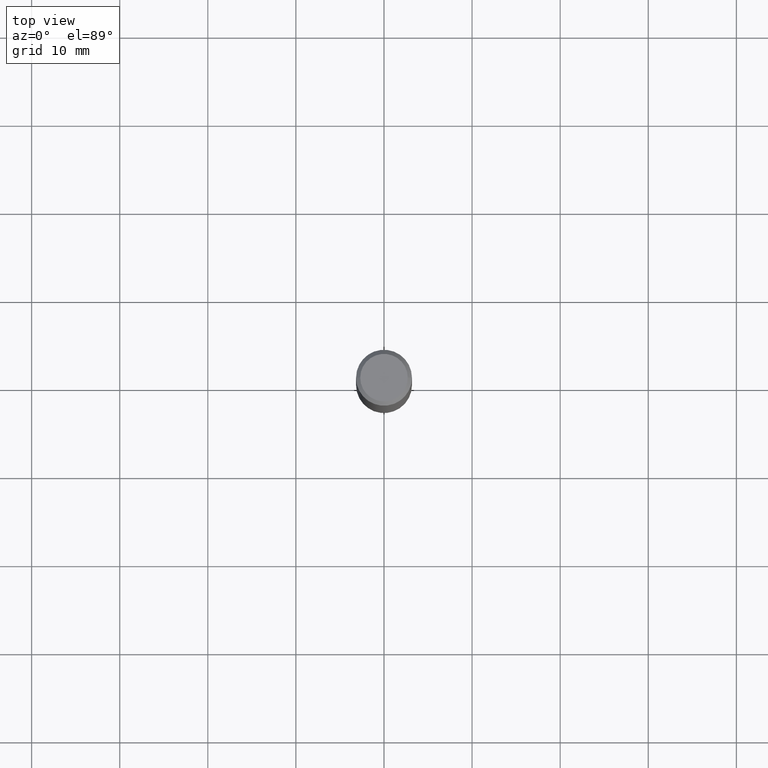
[diagram: clean part render]
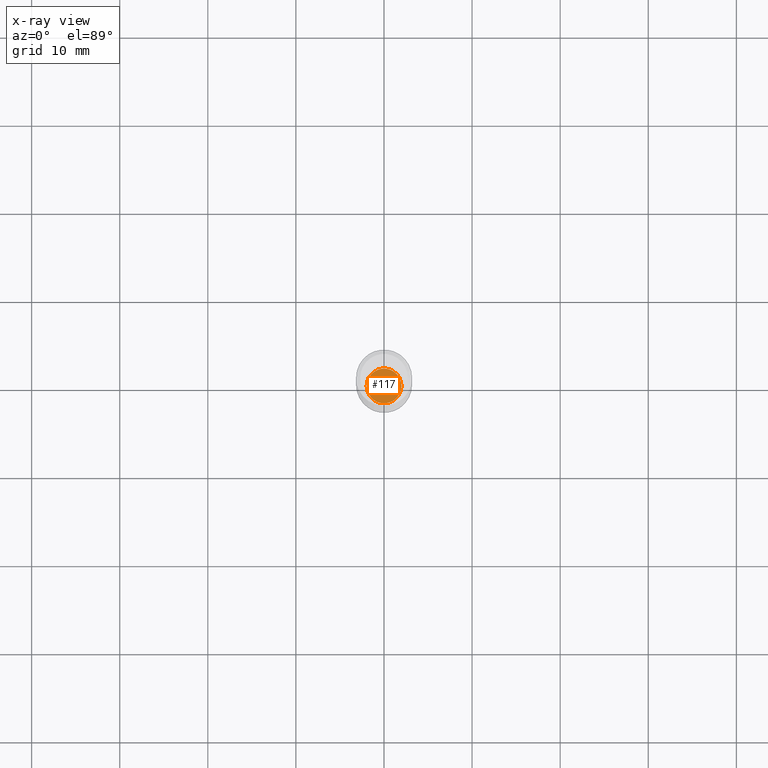
[diagram: x-ray — body ghosted, one internal face saturated and labeled with its STEP entity id]
A machine part, top view, then the same camera in x-ray: the body is ghosted and one INTERNAL B-rep face — a face not visible from any outside direction — is saturated and labeled: STEP entity #117.
In plain terms, the highlighted planar face has unit normal (-0, 0, 1).
Its self-contained STEP definition (entity closure, byte-faithful):
#12 = CARTESIAN_POINT ( 'NONE',  ( -0.07760000000000000231, -6.974301672689643584E-15, -2.156200000000000561 ) ) ;
#22 = ORIENTED_EDGE ( 'NONE', *, *, #387, .F. ) ;
#34 = CARTESIAN_POINT ( 'NONE',  ( 5.272919839896393076E-29, -7.528332062813591757E-15, -2.156200000000000561 ) ) ;
#73 = DIRECTION ( 'NONE',  ( -2.445468806185136597E-29, 3.491481338843145583E-15, 1.000000000000000000 ) ) ;
#92 = DIRECTION ( 'NONE',  ( 1.000000000000000000, -6.982962677686265922E-15, 4.876176775795935793E-29 ) ) ;
#117 = ADVANCED_FACE ( 'NONE', ( #491 ), #252, .F. ) ;
#159 = EDGE_CURVE ( 'NONE', #210, #265, #207, .T. ) ;
#174 = AXIS2_PLACEMENT_3D ( 'NONE', #34, #73, #198 ) ;
#195 = DIRECTION ( 'NONE',  ( 1.000000000000000000, -6.982962677686260400E-15, 0.000000000000000000 ) ) ;
#197 = AXIS2_PLACEMENT_3D ( 'NONE', #425, #432, #92 ) ;
#198 = DIRECTION ( 'NONE',  ( 1.000000000000000000, -6.982962677686260400E-15, 0.000000000000000000 ) ) ;
#207 = CIRCLE ( 'NONE', #174, 0.07760000000000000231 ) ;
#210 = VERTEX_POINT ( 'NONE', #353 ) ;
#217 = CIRCLE ( 'NONE', #469, 0.07760000000000000231 ) ;
#252 = PLANE ( 'NONE',  #197 ) ;
#257 = ORIENTED_EDGE ( 'NONE', *, *, #159, .F. ) ;
#265 = VERTEX_POINT ( 'NONE', #12 ) ;
#309 = DIRECTION ( 'NONE',  ( -2.445468806185136597E-29, 3.491481338843145583E-15, 1.000000000000000000 ) ) ;
#311 = EDGE_LOOP ( 'NONE', ( #257, #22 ) ) ;
#353 = CARTESIAN_POINT ( 'NONE',  ( 0.07760000000000000231, -8.070209966602046975E-15, -2.156200000000000561 ) ) ;
#387 = EDGE_CURVE ( 'NONE', #265, #210, #217, .T. ) ;
#425 = CARTESIAN_POINT ( 'NONE',  ( -2.766233573133431419E-31, -1.511906742871421848E-14, -2.156200000000000561 ) ) ;
#432 = DIRECTION ( 'NONE',  ( -2.438088387897960049E-29, 3.491481338843145188E-15, 1.000000000000000000 ) ) ;
#444 = CARTESIAN_POINT ( 'NONE',  ( 5.272919839896393076E-29, -7.528332062813591757E-15, -2.156200000000000561 ) ) ;
#469 = AXIS2_PLACEMENT_3D ( 'NONE', #444, #309, #195 ) ;
#491 = FACE_OUTER_BOUND ( 'NONE', #311, .T. ) ;